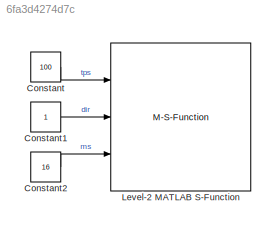
MODEL slx_6fa3d4274d7c
KIND model
CONFIG AbsTol = auto
CONFIG EnableMultiTasking = off
CONFIG FixedStep = auto
CONFIG MaxStep = auto
CONFIG MinStep = auto
CONFIG RelTol = 1e-3
CONFIG SampleTimeConstraint = Unconstrained
CONFIG Solver = VariableStepAuto
CONFIG SolverName = VariableStepAuto
CONFIG StartTime = 0.0
CONFIG StopTime = inf
BLOCK [Constant] Constant
  Value = 100
BLOCK [Constant] Constant1
BLOCK [Constant] Constant2
  Value = 16
BLOCK [M-S-Function] Level-2 MATLAB S-Function
  FunctionName = StepperPumpComm
  Ports = [3]
LINE Constant1:1 -> Level-2 MATLAB S-Function:2
LINE Constant2:1 -> Level-2 MATLAB S-Function:3
LINE Constant:1 -> Level-2 MATLAB S-Function:1
